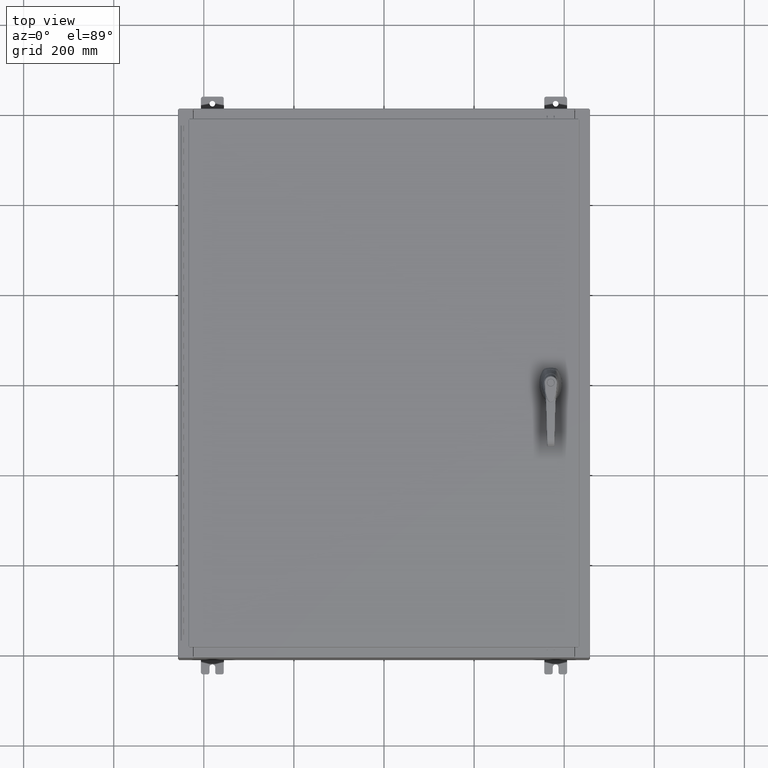
[diagram: clean part render]
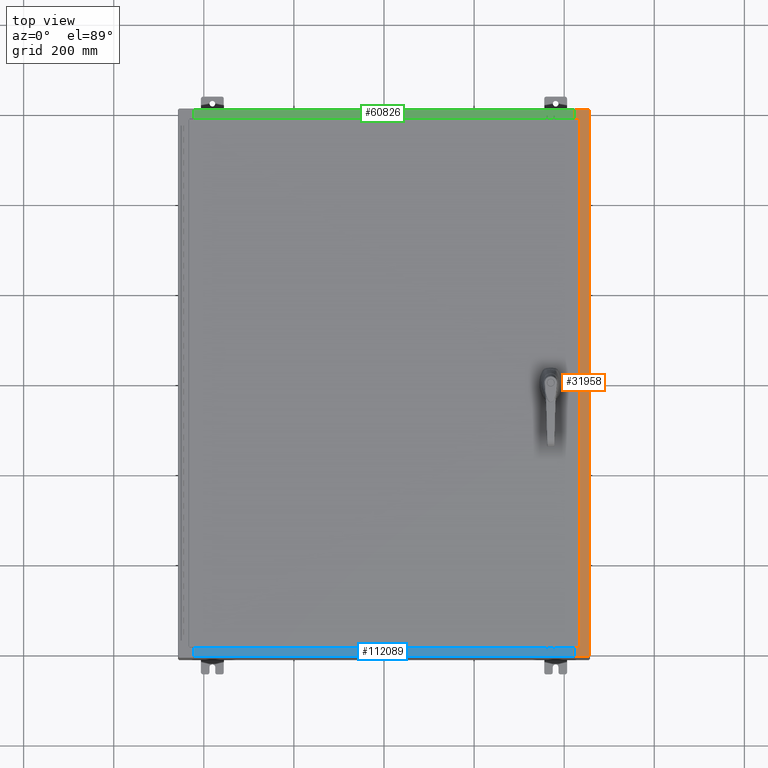
[diagram: same view with three faces highlighted in distinct colors, each labeled with its STEP entity id]
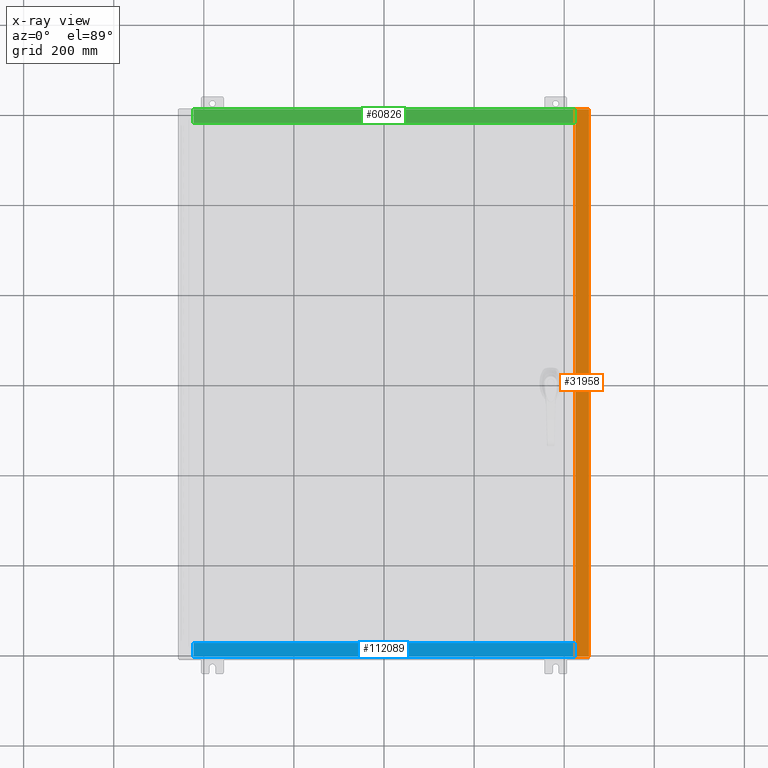
[diagram: x-ray of the same camera — body ghosted, the three highlighted faces saturated]
A machine part, top view with three faces highlighted in distinct colors.
The next image is the same camera in x-ray (body ghosted, the three faces saturated) — at least one of them is partly hidden behind the body in this view.
Their STEP definitions:

[orange] entity #31958 — the highlighted planar face has unit normal (-0, 0, -1).
#221 = DIRECTION ( 'NONE',  ( -0.0000000000000000000, -1.000000000000000000, -0.0000000000000000000 ) ) ;
#963 = VERTEX_POINT ( 'NONE', #67769 ) ;
#2168 = VECTOR ( 'NONE', #77106, 39.37007874015748100 ) ;
#5319 = DIRECTION ( 'NONE',  ( 0.0000000000000000000, -1.000000000000000000, 0.0000000000000000000 ) ) ;
#5432 = CARTESIAN_POINT ( 'NONE',  ( 16.75005000000003700, 22.63109999999996800, 11.92530000000001200 ) ) ;
#6426 = DIRECTION ( 'NONE',  ( -1.000000000000000000, 0.0000000000000000000, 0.0000000000000000000 ) ) ;
#7998 = VECTOR ( 'NONE', #125675, 39.37007874015748100 ) ;
#8261 = CARTESIAN_POINT ( 'NONE',  ( 16.69970000000003900, -22.63109999999998600, 11.92530000000000900 ) ) ;
#9750 = DIRECTION ( 'NONE',  ( 7.132762385546384700E-015, 0.0000000000000000000, 1.000000000000000000 ) ) ;
#11421 = ORIENTED_EDGE ( 'NONE', *, *, #55597, .F. ) ;
#11550 = EDGE_CURVE ( 'NONE', #57330, #963, #65329, .T. ) ;
#13252 = ORIENTED_EDGE ( 'NONE', *, *, #44046, .T. ) ;
#14021 = ORIENTED_EDGE ( 'NONE', *, *, #41927, .T. ) ;
#17286 = VERTEX_POINT ( 'NONE', #111591 ) ;
#21434 = VERTEX_POINT ( 'NONE', #8261 ) ;
#23196 = ORIENTED_EDGE ( 'NONE', *, *, #28246, .T. ) ;
#23422 = CIRCLE ( 'NONE', #70575, 0.01867499999999949400 ) ;
#24751 = LINE ( 'NONE', #51312, #100083 ) ;
#24902 = DIRECTION ( 'NONE',  ( 1.000000000000000000, 0.0000000000000000000, -7.132762385546384700E-015 ) ) ;
#25947 = CARTESIAN_POINT ( 'NONE',  ( 16.69970000000003900, 0.0000000000000000000, 11.92530000000000900 ) ) ;
#27536 = CARTESIAN_POINT ( 'NONE',  ( 17.91230000000003700, -23.92529999999998900, 11.92530000000000400 ) ) ;
#28246 = EDGE_CURVE ( 'NONE', #75773, #17286, #85388, .T. ) ;
#31958 = ADVANCED_FACE ( 'NONE', ( #117021 ), #71819, .F. ) ;
#32045 = VERTEX_POINT ( 'NONE', #52562 ) ;
#33083 = CARTESIAN_POINT ( 'NONE',  ( 16.71270000000003700, -22.59374999999998900, 11.92530000000001200 ) ) ;
#35512 = LINE ( 'NONE', #75967, #110814 ) ;
#36093 = AXIS2_PLACEMENT_3D ( 'NONE', #103178, #41832, #113496 ) ;
#36633 = CIRCLE ( 'NONE', #131508, 0.01867499999999949400 ) ;
#36636 = ORIENTED_EDGE ( 'NONE', *, *, #81048, .F. ) ;
#36668 = DIRECTION ( 'NONE',  ( 7.132762385546384700E-015, 0.0000000000000000000, 1.000000000000000000 ) ) ;
#37852 = LINE ( 'NONE', #129159, #61902 ) ;
#38129 = ORIENTED_EDGE ( 'NONE', *, *, #38788, .F. ) ;
#38788 = EDGE_CURVE ( 'NONE', #75773, #80523, #24751, .T. ) ;
#39726 = ORIENTED_EDGE ( 'NONE', *, *, #70131, .F. ) ;
#40987 = LINE ( 'NONE', #66260, #116347 ) ;
#41832 = DIRECTION ( 'NONE',  ( -7.132762385546384700E-015, 0.0000000000000000000, -1.000000000000000000 ) ) ;
#41927 = EDGE_CURVE ( 'NONE', #21434, #32045, #102775, .T. ) ;
#44046 = EDGE_CURVE ( 'NONE', #32045, #80523, #35512, .T. ) ;
#46585 = VERTEX_POINT ( 'NONE', #125676 ) ;
#46805 = EDGE_CURVE ( 'NONE', #121502, #106935, #36633, .T. ) ;
#50342 = ORIENTED_EDGE ( 'NONE', *, *, #92628, .T. ) ;
#51312 = CARTESIAN_POINT ( 'NONE',  ( 17.91230000000003700, -23.92529999999998900, 11.92530000000000400 ) ) ;
#52562 = CARTESIAN_POINT ( 'NONE',  ( 16.69970000000003900, -23.92529999999998900, 11.92530000000000900 ) ) ;
#55597 = EDGE_CURVE ( 'NONE', #106935, #57330, #37852, .T. ) ;
#55932 = DIRECTION ( 'NONE',  ( 0.0000000000000000000, -1.000000000000000000, 0.0000000000000000000 ) ) ;
#57330 = VERTEX_POINT ( 'NONE', #101328 ) ;
#61902 = VECTOR ( 'NONE', #6426, 39.37007874015748100 ) ;
#62489 = LINE ( 'NONE', #105490, #7998 ) ;
#62701 = CARTESIAN_POINT ( 'NONE',  ( 16.75005000000003700, 22.59374999999997200, 11.92530000000000900 ) ) ;
#63018 = CARTESIAN_POINT ( 'NONE',  ( 8.532114493236880700E-014, 23.92529999999998600, 11.92530000000013000 ) ) ;
#65329 = LINE ( 'NONE', #33083, #113424 ) ;
#66260 = CARTESIAN_POINT ( 'NONE',  ( 16.69970000000003900, -22.63109999999998600, 11.92530000000000900 ) ) ;
#67769 = CARTESIAN_POINT ( 'NONE',  ( 16.71270000000003700, 22.59374999999997200, 11.92530000000001200 ) ) ;
#70131 = EDGE_CURVE ( 'NONE', #86687, #46585, #23422, .T. ) ;
#70575 = AXIS2_PLACEMENT_3D ( 'NONE', #98041, #36668, #108312 ) ;
#71118 = CARTESIAN_POINT ( 'NONE',  ( 16.75005000000003700, -22.61242499999998800, 11.92530000000001200 ) ) ;
#71819 = PLANE ( 'NONE',  #36093 ) ;
#73317 = DIRECTION ( 'NONE',  ( -1.000000000000000000, 0.0000000000000000000, 7.132762385546384700E-015 ) ) ;
#75773 = VERTEX_POINT ( 'NONE', #85645 ) ;
#75967 = CARTESIAN_POINT ( 'NONE',  ( 8.532114493236880700E-014, -23.92529999999998900, 11.92530000000013000 ) ) ;
#76563 = DIRECTION ( 'NONE',  ( 1.000000000000000000, 0.0000000000000000000, 4.340572780400098900E-014 ) ) ;
#77106 = DIRECTION ( 'NONE',  ( -1.000000000000000000, 0.0000000000000000000, -4.340572780400098900E-014 ) ) ;
#77153 = VERTEX_POINT ( 'NONE', #79491 ) ;
#79491 = CARTESIAN_POINT ( 'NONE',  ( 16.69970000000003900, 22.63109999999996800, 11.92530000000000900 ) ) ;
#79783 = EDGE_LOOP ( 'NONE', ( #92989, #14021, #13252, #38129, #23196, #50342, #36636, #39726, #102188, #83690, #11421, #131220 ) ) ;
#80523 = VERTEX_POINT ( 'NONE', #27536 ) ;
#80738 = LINE ( 'NONE', #5432, #2168 ) ;
#81048 = EDGE_CURVE ( 'NONE', #46585, #77153, #80738, .T. ) ;
#81449 = DIRECTION ( 'NONE',  ( 1.000000000000000000, 0.0000000000000000000, 0.0000000000000000000 ) ) ;
#82201 = VECTOR ( 'NONE', #73317, 39.37007874015748100 ) ;
#83690 = ORIENTED_EDGE ( 'NONE', *, *, #11550, .F. ) ;
#85388 = LINE ( 'NONE', #63018, #82201 ) ;
#85645 = CARTESIAN_POINT ( 'NONE',  ( 17.91230000000003700, 23.92529999999998600, 11.92530000000000400 ) ) ;
#86687 = VERTEX_POINT ( 'NONE', #62701 ) ;
#92628 = EDGE_CURVE ( 'NONE', #17286, #77153, #131348, .T. ) ;
#92989 = ORIENTED_EDGE ( 'NONE', *, *, #124865, .F. ) ;
#94461 = DIRECTION ( 'NONE',  ( -0.0000000000000000000, 1.000000000000000000, -0.0000000000000000000 ) ) ;
#98041 = CARTESIAN_POINT ( 'NONE',  ( 16.75005000000003700, 22.61242499999997000, 11.92530000000001200 ) ) ;
#100083 = VECTOR ( 'NONE', #221, 39.37007874015748100 ) ;
#101328 = CARTESIAN_POINT ( 'NONE',  ( 16.71270000000003700, -22.59374999999998900, 11.92530000000001200 ) ) ;
#102188 = ORIENTED_EDGE ( 'NONE', *, *, #102538, .F. ) ;
#102538 = EDGE_CURVE ( 'NONE', #963, #86687, #62489, .T. ) ;
#102775 = LINE ( 'NONE', #127587, #126827 ) ;
#103178 = CARTESIAN_POINT ( 'NONE',  ( 8.532114493236880700E-014, 0.0000000000000000000, 11.92530000000013000 ) ) ;
#105490 = CARTESIAN_POINT ( 'NONE',  ( 16.71270000000003700, 22.59374999999997200, 11.92530000000001200 ) ) ;
#106442 = CARTESIAN_POINT ( 'NONE',  ( 16.75005000000003700, -22.59374999999998900, 11.92530000000000900 ) ) ;
#106935 = VERTEX_POINT ( 'NONE', #106442 ) ;
#107256 = VECTOR ( 'NONE', #5319, 39.37007874015748100 ) ;
#108312 = DIRECTION ( 'NONE',  ( 1.000000000000000000, 0.0000000000000000000, 0.0000000000000000000 ) ) ;
#110814 = VECTOR ( 'NONE', #24902, 39.37007874015748100 ) ;
#111591 = CARTESIAN_POINT ( 'NONE',  ( 16.69970000000003900, 23.92529999999998200, 11.92530000000000900 ) ) ;
#113424 = VECTOR ( 'NONE', #94461, 39.37007874015748100 ) ;
#113496 = DIRECTION ( 'NONE',  ( -1.000000000000000000, 0.0000000000000000000, 7.132762385546384700E-015 ) ) ;
#116347 = VECTOR ( 'NONE', #76563, 39.37007874015748100 ) ;
#117021 = FACE_OUTER_BOUND ( 'NONE', #79783, .T. ) ;
#121502 = VERTEX_POINT ( 'NONE', #129033 ) ;
#124865 = EDGE_CURVE ( 'NONE', #21434, #121502, #40987, .T. ) ;
#125675 = DIRECTION ( 'NONE',  ( 1.000000000000000000, 0.0000000000000000000, 0.0000000000000000000 ) ) ;
#125676 = CARTESIAN_POINT ( 'NONE',  ( 16.75005000000003700, 22.63109999999996800, 11.92530000000000900 ) ) ;
#126827 = VECTOR ( 'NONE', #55932, 39.37007874015748100 ) ;
#127587 = CARTESIAN_POINT ( 'NONE',  ( 16.69970000000003900, 0.0000000000000000000, 11.92530000000000900 ) ) ;
#129033 = CARTESIAN_POINT ( 'NONE',  ( 16.75005000000003700, -22.63109999999998600, 11.92530000000000900 ) ) ;
#129159 = CARTESIAN_POINT ( 'NONE',  ( 16.75005000000003700, -22.59374999999998900, 11.92530000000001200 ) ) ;
#131220 = ORIENTED_EDGE ( 'NONE', *, *, #46805, .F. ) ;
#131348 = LINE ( 'NONE', #25947, #107256 ) ;
#131508 = AXIS2_PLACEMENT_3D ( 'NONE', #71118, #9750, #81449 ) ;

[blue] entity #112089 — the highlighted planar face has unit normal (-0, -0, 1).
#293 = CARTESIAN_POINT ( 'NONE',  ( 16.63720000000000400, -0.08769999999999948700, 5.999999999999999100 ) ) ;
#7863 = CARTESIAN_POINT ( 'NONE',  ( 16.63720000000000400, -1.287299999999999400, 6.000000000000001800 ) ) ;
#7892 = CARTESIAN_POINT ( 'NONE',  ( -2.276882898771239300E-018, 1.610972251716581800E-014, 5.999999999999999100 ) ) ;
#12039 = EDGE_CURVE ( 'NONE', #97656, #115541, #23596, .T. ) ;
#18170 = DIRECTION ( 'NONE',  ( -1.000000000000000000, 0.0000000000000000000, 0.0000000000000000000 ) ) ;
#23596 = LINE ( 'NONE', #100151, #102086 ) ;
#25953 = VECTOR ( 'NONE', #18170, 39.37007874015748100 ) ;
#28055 = CARTESIAN_POINT ( 'NONE',  ( 16.63720000000000400, -1.300299999999999800, 6.000000000000003600 ) ) ;
#28943 = DIRECTION ( 'NONE',  ( 0.0000000000000000000, -1.000000000000000000, 2.674785894579892700E-015 ) ) ;
#30412 = ORIENTED_EDGE ( 'NONE', *, *, #61140, .F. ) ;
#44598 = DIRECTION ( 'NONE',  ( -0.0000000000000000000, 1.000000000000000000, -2.674785894579892700E-015 ) ) ;
#46089 = AXIS2_PLACEMENT_3D ( 'NONE', #7892, #90326, #28943 ) ;
#49505 = DIRECTION ( 'NONE',  ( -1.000000000000000000, 3.284023746380717400E-017, -8.784060394284559800E-032 ) ) ;
#49973 = LINE ( 'NONE', #7863, #25953 ) ;
#57828 = VERTEX_POINT ( 'NONE', #78346 ) ;
#58598 = LINE ( 'NONE', #28055, #82658 ) ;
#61140 = EDGE_CURVE ( 'NONE', #57828, #129228, #49973, .T. ) ;
#67104 = CARTESIAN_POINT ( 'NONE',  ( -16.63719999999999600, -0.08769999999999972300, 5.999999999999999100 ) ) ;
#68798 = DIRECTION ( 'NONE',  ( -0.0000000000000000000, -1.000000000000000000, 3.566381192773190000E-015 ) ) ;
#69492 = ORIENTED_EDGE ( 'NONE', *, *, #96300, .F. ) ;
#78346 = CARTESIAN_POINT ( 'NONE',  ( 16.63720000000000400, -1.287299999999999400, 6.000000000000003600 ) ) ;
#81665 = ORIENTED_EDGE ( 'NONE', *, *, #116321, .F. ) ;
#82658 = VECTOR ( 'NONE', #68798, 39.37007874015748100 ) ;
#85826 = CARTESIAN_POINT ( 'NONE',  ( -16.63719999999999600, -1.287299999999998600, 6.000000000000002700 ) ) ;
#90326 = DIRECTION ( 'NONE',  ( 0.0000000000000000000, 2.674785894579892700E-015, 1.000000000000000000 ) ) ;
#93487 = FACE_OUTER_BOUND ( 'NONE', #127273, .T. ) ;
#96300 = EDGE_CURVE ( 'NONE', #97656, #57828, #58598, .T. ) ;
#97656 = VERTEX_POINT ( 'NONE', #293 ) ;
#100151 = CARTESIAN_POINT ( 'NONE',  ( -5.156971724347648400E-018, -0.08769999999999972300, 5.999999999999999100 ) ) ;
#102086 = VECTOR ( 'NONE', #49505, 39.37007874015748100 ) ;
#110425 = LINE ( 'NONE', #116741, #129849 ) ;
#112089 = ADVANCED_FACE ( 'NONE', ( #93487 ), #120774, .T. ) ;
#115541 = VERTEX_POINT ( 'NONE', #67104 ) ;
#116321 = EDGE_CURVE ( 'NONE', #129228, #115541, #110425, .T. ) ;
#116741 = CARTESIAN_POINT ( 'NONE',  ( -16.63719999999999600, -0.07469999999999973900, 5.999999999999999100 ) ) ;
#120774 = PLANE ( 'NONE',  #46089 ) ;
#123252 = ORIENTED_EDGE ( 'NONE', *, *, #12039, .T. ) ;
#127273 = EDGE_LOOP ( 'NONE', ( #81665, #30412, #69492, #123252 ) ) ;
#129228 = VERTEX_POINT ( 'NONE', #85826 ) ;
#129849 = VECTOR ( 'NONE', #44598, 39.37007874015748100 ) ;

[green] entity #60826 — the highlighted planar face has unit normal (0, 0, 1).
#3356 = CARTESIAN_POINT ( 'NONE',  ( 16.63720000000000400, -0.08769999999999948700, 5.999999999999999100 ) ) ;
#3872 = CARTESIAN_POINT ( 'NONE',  ( -2.276882898771239300E-018, 1.610972251716581800E-014, 5.999999999999999100 ) ) ;
#4457 = CARTESIAN_POINT ( 'NONE',  ( -16.63719999999999600, -0.08769999999999972300, 5.999999999999999100 ) ) ;
#9405 = VERTEX_POINT ( 'NONE', #108522 ) ;
#12098 = VERTEX_POINT ( 'NONE', #122520 ) ;
#13319 = DIRECTION ( 'NONE',  ( -0.0000000000000000000, 1.000000000000000000, -2.674785894579892700E-015 ) ) ;
#17991 = LINE ( 'NONE', #54086, #69254 ) ;
#24927 = PLANE ( 'NONE',  #60608 ) ;
#29191 = LINE ( 'NONE', #109086, #107659 ) ;
#34621 = CARTESIAN_POINT ( 'NONE',  ( -5.156971724347648400E-018, -0.08769999999999972300, 5.999999999999999100 ) ) ;
#35257 = DIRECTION ( 'NONE',  ( 0.0000000000000000000, 2.674785894579892700E-015, 1.000000000000000000 ) ) ;
#35278 = LINE ( 'NONE', #34621, #131426 ) ;
#42024 = FACE_OUTER_BOUND ( 'NONE', #52387, .T. ) ;
#52387 = EDGE_LOOP ( 'NONE', ( #118017, #66520, #78893, #111223 ) ) ;
#54086 = CARTESIAN_POINT ( 'NONE',  ( -16.63719999999999600, -0.07469999999999973900, 5.999999999999999100 ) ) ;
#60608 = AXIS2_PLACEMENT_3D ( 'NONE', #3872, #35257, #106870 ) ;
#60762 = EDGE_CURVE ( 'NONE', #12098, #73705, #17991, .T. ) ;
#60826 = ADVANCED_FACE ( 'NONE', ( #42024 ), #24927, .T. ) ;
#61018 = EDGE_CURVE ( 'NONE', #85694, #9405, #29191, .T. ) ;
#66520 = ORIENTED_EDGE ( 'NONE', *, *, #128989, .F. ) ;
#69254 = VECTOR ( 'NONE', #13319, 39.37007874015748100 ) ;
#73705 = VERTEX_POINT ( 'NONE', #4457 ) ;
#77359 = LINE ( 'NONE', #91749, #128653 ) ;
#78893 = ORIENTED_EDGE ( 'NONE', *, *, #61018, .F. ) ;
#85694 = VERTEX_POINT ( 'NONE', #3356 ) ;
#91749 = CARTESIAN_POINT ( 'NONE',  ( 16.63720000000000400, -1.287299999999999400, 6.000000000000001800 ) ) ;
#98789 = DIRECTION ( 'NONE',  ( -0.0000000000000000000, -1.000000000000000000, 3.566381192773190000E-015 ) ) ;
#106870 = DIRECTION ( 'NONE',  ( 0.0000000000000000000, -1.000000000000000000, 2.674785894579892700E-015 ) ) ;
#107659 = VECTOR ( 'NONE', #98789, 39.37007874015748100 ) ;
#108522 = CARTESIAN_POINT ( 'NONE',  ( 16.63720000000000400, -1.287299999999999400, 6.000000000000003600 ) ) ;
#109086 = CARTESIAN_POINT ( 'NONE',  ( 16.63720000000000400, -1.300299999999999800, 6.000000000000003600 ) ) ;
#111223 = ORIENTED_EDGE ( 'NONE', *, *, #116720, .T. ) ;
#112319 = DIRECTION ( 'NONE',  ( -1.000000000000000000, 0.0000000000000000000, 0.0000000000000000000 ) ) ;
#116586 = DIRECTION ( 'NONE',  ( -1.000000000000000000, 3.284023746380717400E-017, -8.784060394284559800E-032 ) ) ;
#116720 = EDGE_CURVE ( 'NONE', #85694, #73705, #35278, .T. ) ;
#118017 = ORIENTED_EDGE ( 'NONE', *, *, #60762, .F. ) ;
#122520 = CARTESIAN_POINT ( 'NONE',  ( -16.63719999999999600, -1.287299999999998600, 6.000000000000002700 ) ) ;
#128653 = VECTOR ( 'NONE', #112319, 39.37007874015748100 ) ;
#128989 = EDGE_CURVE ( 'NONE', #9405, #12098, #77359, .T. ) ;
#131426 = VECTOR ( 'NONE', #116586, 39.37007874015748100 ) ;